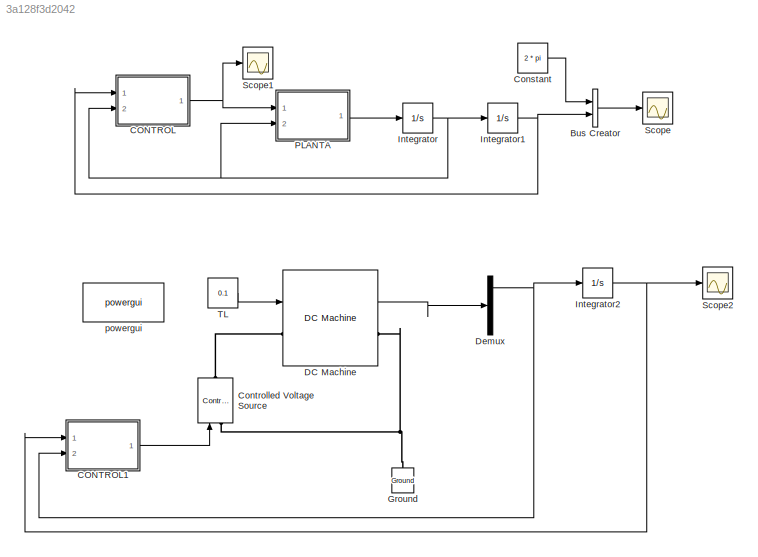
MODEL slx_3a128f3d2042
KIND model
CONFIG AbsTol = auto
CONFIG EnableMultiTasking = off
CONFIG FixedStep = auto
CONFIG MaxStep = auto
CONFIG MinStep = auto
CONFIG RelTol = 1e-3
CONFIG SampleTimeConstraint = Unconstrained
CONFIG SolverName = VariableStepAuto
CONFIG StartTime = 0.0
CONFIG StopTime = 10
BLOCK [BusCreator] Bus Creator
  DisplayOption = bar
  InheritFromInputs = on
  Inputs = 2
  Ports = [2, 1]
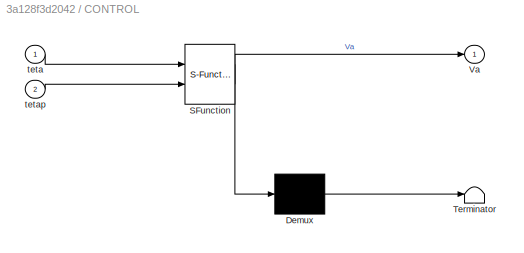
BLOCK [SubSystem] CONTROL
  ErrorFcn = Stateflow.Translate.translate
  PermitHierarchicalResolution = ExplicitOnly
  Ports = [2, 1]
  RequestExecContextInheritance = off
  SFBlockType = MATLAB Function
  TreatAsAtomicUnit = on
BLOCK [Demux] CONTROL/ Demux 
  Outputs = 1
  Ports = [1, 1]
BLOCK [S-Function] CONTROL/ SFunction 
  EnableBusSupport = on
  FunctionName = sf_sfun
  PortCounts = [2 2]
  Ports = [2, 2]
  SFcnIsStateOwnerBlock = off
  SFunctionDeploymentMode = off
  Tag = Stateflow S-Function 1
BLOCK [Terminator] CONTROL/ Terminator 
BLOCK [Outport] CONTROL/Va
BLOCK [Inport] CONTROL/teta
BLOCK [Inport] CONTROL/tetap
  Port = 2
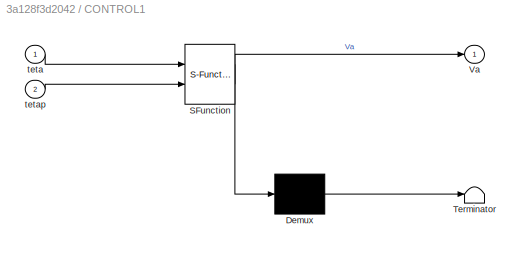
BLOCK [SubSystem] CONTROL1
  ErrorFcn = Stateflow.Translate.translate
  PermitHierarchicalResolution = ExplicitOnly
  Ports = [2, 1]
  RequestExecContextInheritance = off
  SFBlockType = MATLAB Function
  TreatAsAtomicUnit = on
BLOCK [Demux] CONTROL1/ Demux 
  Outputs = 1
  Ports = [1, 1]
BLOCK [S-Function] CONTROL1/ SFunction 
  EnableBusSupport = on
  FunctionName = sf_sfun
  PortCounts = [2 2]
  Ports = [2, 2]
  SFcnIsStateOwnerBlock = off
  SFunctionDeploymentMode = off
  Tag = Stateflow S-Function 3
BLOCK [Terminator] CONTROL1/ Terminator 
BLOCK [Outport] CONTROL1/Va
BLOCK [Inport] CONTROL1/teta
BLOCK [Inport] CONTROL1/tetap
  Port = 2
BLOCK [Constant] Constant
  Value = 2 * pi
BLOCK [Reference] Controlled Voltage Source  REF=powerlib/Electrical
Sources/Controlled Voltage Source
  NameLocation = right
  Ports = [1, 0, 0, 0, 0, 1, 1]
  SourceBlock = powerlib/Electrical\nSources/Controlled Voltage Source
  SourceProductBaseCode = PS
  SourceType = Controlled Voltage Source
BLOCK [Reference] DC Machine  REF=powerlib/Machines/DC Machine
  Ports = [1, 1, 0, 0, 0, 1, 1]
  SourceBlock = powerlib/Machines/DC Machine
  SourceProductBaseCode = PS
  SourceType = DC machine
BLOCK [Demux] Demux
  Ports = [1, 4]
BLOCK [Reference] Ground  REF=powerlib/Elements/Ground
  NameLocation = right
  Ports = [0, 0, 0, 0, 0, 1]
  SourceBlock = powerlib/Elements/Ground
  SourceProductBaseCode = PS
  SourceType = Ground
BLOCK [Integrator] Integrator
  Ports = [1, 1]
BLOCK [Integrator] Integrator1
  Ports = [1, 1]
BLOCK [Integrator] Integrator2
  Ports = [1, 1]
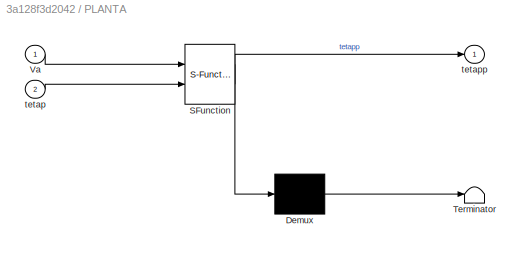
BLOCK [SubSystem] PLANTA
  ErrorFcn = Stateflow.Translate.translate
  PermitHierarchicalResolution = ExplicitOnly
  Ports = [2, 1]
  RequestExecContextInheritance = off
  SFBlockType = MATLAB Function
  TreatAsAtomicUnit = on
BLOCK [Demux] PLANTA/ Demux 
  Outputs = 1
  Ports = [1, 1]
BLOCK [S-Function] PLANTA/ SFunction 
  EnableBusSupport = on
  FunctionName = sf_sfun
  PortCounts = [2 2]
  Ports = [2, 2]
  SFcnIsStateOwnerBlock = off
  SFunctionDeploymentMode = off
  Tag = Stateflow S-Function 2
BLOCK [Terminator] PLANTA/ Terminator 
BLOCK [Inport] PLANTA/Va
BLOCK [Inport] PLANTA/tetap
  Port = 2
BLOCK [Outport] PLANTA/tetapp
BLOCK [Scope] Scope
  Floating = off
  NumInputPorts = 1
  Ports = [1]
  ScopeSpecificationString = Simulink.scopes.TimeScopeBlockCfg('CurrentConfiguration', extmgr.ConfigurationSet(extmgr.Configuration('Core','General UI',true),extmgr.Configuration('Core','Source UI',true),extmgr.Configuration('Sources','WiredSimulink',true),extmgr.Configuration('Visuals','Time Domain',true,'SerializedDisplays',{struct('MinYLimReal','-0.94901','MaxYLimReal','8.54111','YLabelReal','','MinYLimMag','0.00000','MaxY...<+1396ch>
BLOCK [Scope] Scope1
  Floating = off
  NumInputPorts = 1
  Ports = [1]
  ScopeSpecificationString = Simulink.scopes.TimeScopeBlockCfg('CurrentConfiguration', extmgr.ConfigurationSet(extmgr.Configuration('Core','General UI',true),extmgr.Configuration('Core','Source UI',true),extmgr.Configuration('Sources','WiredSimulink',true,'DataLoggingVariableName','ScopeData1'),extmgr.Configuration('Visuals','Time Domain',true,'SerializedDisplays',{struct('MinYLimReal','9.18181','MaxYLimReal','10.28362','YLab...<+1422ch>
BLOCK [Scope] Scope2
  Floating = off
  NumInputPorts = 1
  Ports = [1]
  ScopeSpecificationString = Simulink.scopes.TimeScopeBlockCfg('CurrentConfiguration', extmgr.ConfigurationSet(extmgr.Configuration('Core','General UI',true),extmgr.Configuration('Core','Source UI',true),extmgr.Configuration('Sources','WiredSimulink',true,'DataLoggingVariableName','ScopeData1'),extmgr.Configuration('Visuals','Time Domain',true,'SerializedDisplays',{struct('MinYLimReal','-0.95064','MaxYLimReal','8.54779','YLab...<+1424ch>
BLOCK [Constant] TL
  Value = 0.1
BLOCK [Reference] powergui  REF=powerlib/powergui
  Ports = []
  Priority = 1
  SourceBlock = powerlib/powergui
  SourceProductBaseCode = PS
  SourceType = PSB option menu block
LINE Bus Creator:1 -> Scope:1
LINE CONTROL1:1 -> Controlled Voltage Source:1
NET CONTROL:1 -> PLANTA:1, Scope1:1
LINE Constant:1 -> Bus Creator:1
LINE DC Machine:1 -> Demux:1
NET Demux:1 -> CONTROL1:2, Integrator2:1
NET Integrator1:1 -> Bus Creator:2, CONTROL:1
NET Integrator2:1 -> CONTROL1:1, Scope2:1
NET Integrator:1 -> CONTROL:2, Integrator1:1, PLANTA:2
LINE PLANTA:1 -> Integrator:1
LINE TL:1 -> DC Machine:1
PNET net1: Controlled Voltage Source:LConn1 -- DC Machine:RConn1 -- Ground:LConn1
PLINE Controlled Voltage Source:RConn1 -- DC Machine:LConn1
note: NET lines group one-source signal fan-out (src -> all destinations, sorted); 1:1 wires keep LINE; PNET lines group multi-terminal physical nets as a canonical sorted terminal list (undirected conserving connections); 2-terminal nets keep the pairwise PLINE form
CHART PLANTA states=1 transitions=1
  STATE_LABEL 'eML_blk_kernel()'
  STATE_LABEL 'SCRIPT:\nfunction tetapp = fcn(Va, tetap)\n% Parámetros\nRa = 8.3;\nKe = 0.0879;\nKi = 0.0879;\nJ = 80.7e-6;\nB = 14.41e-6;\nTL = 0.1;\n\ntetapp = Ki / (J * Ra) * Va - Ki * Ke / (J * Ra) * tetap - B / J * tetap - 1 / J * TL;'
CHART CONTROL1 states=1 transitions=1
  STATE_LABEL 'eML_blk_kernel()'
  STATE_LABEL 'SCRIPT:\nfunction Va = fcn(teta, tetap)\n% Parametros\nRa = 8.3;\nKe = 0.0879;\nKi = 0.0879;\nJ = 80.7e-6;\nB = 14.41e-6;\nTL = 0.1;\n\ntetad = 2 * pi;\nKp = 5;\nKd = 2;\n\nVaux = Kp * (tetad - teta) - Kd * tetap;\nVa = J * Ra / Ki * (Vaux + Ki * Ke / (J * Ra) * tetap + B / J * tetap + 1 / J * TL);'
CHART CONTROL states=1 transitions=1
  STATE_LABEL 'eML_blk_kernel()'
  STATE_LABEL 'SCRIPT:\nfunction Va = fcn(teta, tetap)\n% Parametros\nRa = 8.3;\nKe = 0.0879;\nKi = 0.0879;\nJ = 80.7e-6;\nB = 14.41e-6;\nTL = 0.1;\n\ntetad = 2 * pi;\nKp = 5;\nKd = 2;\n\nVaux = Kp * (tetad - teta) - Kd * tetap;\nVa = J * Ra / Ki * (Vaux + Ki * Ke / (J * Ra) * tetap + B / J * tetap + 1 / J * TL);'
CHART  states=0 transitions=0
CHART  states=0 transitions=0
CHART  states=0 transitions=0
